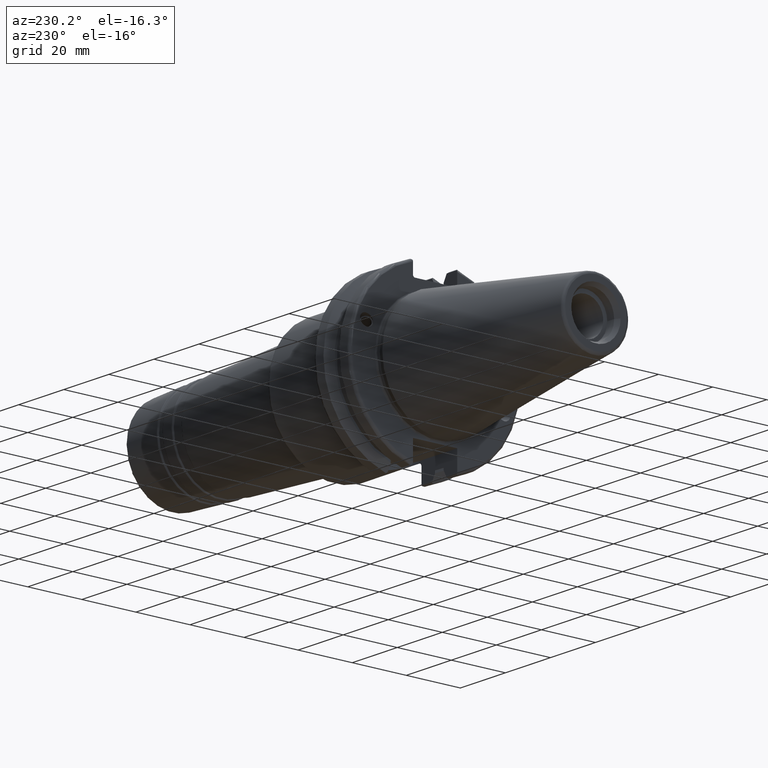
[diagram: clean part render]
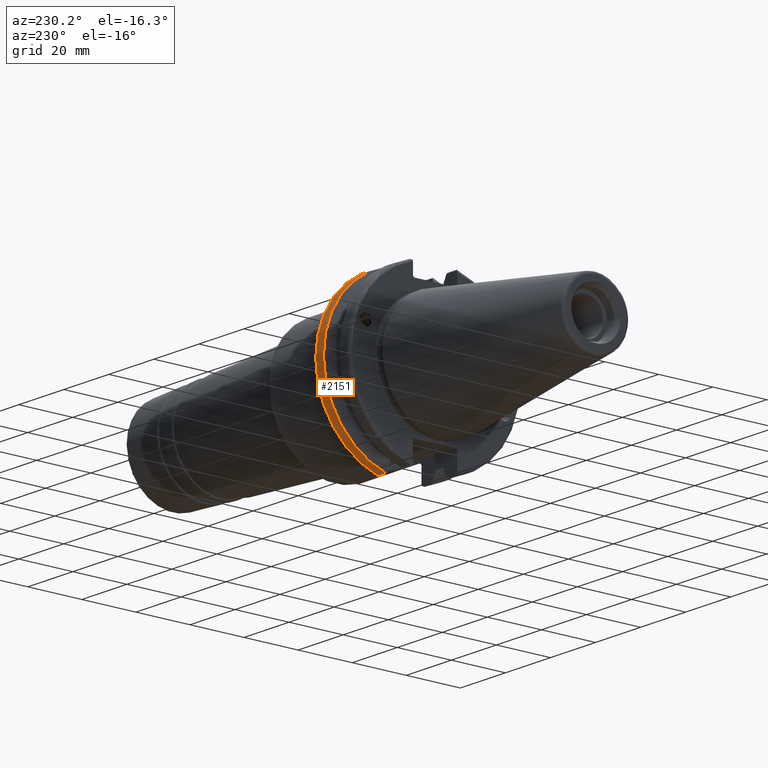
[diagram: same view with one face highlighted and labeled with its STEP entity id]
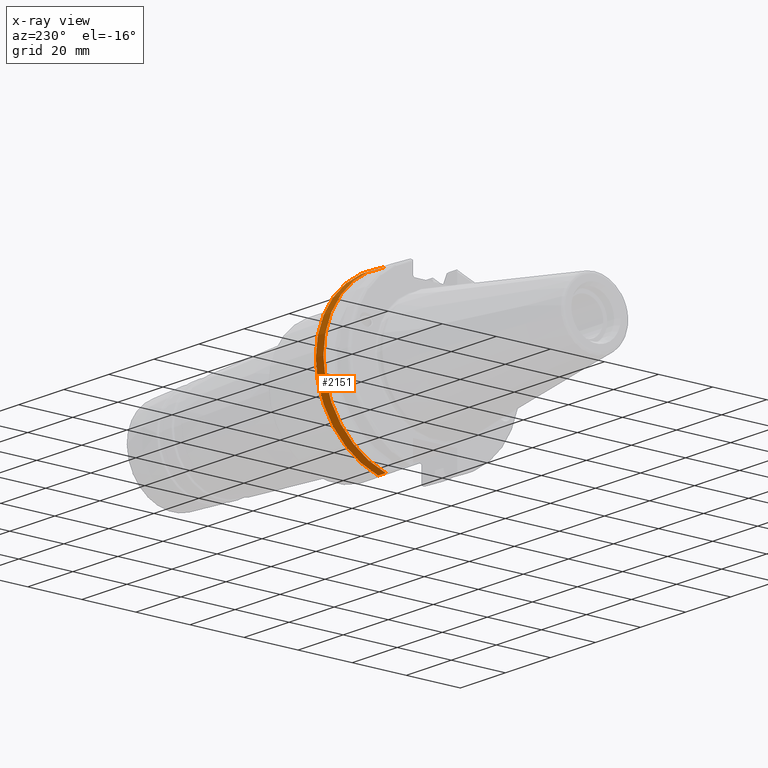
[diagram: x-ray of the same camera — body ghosted, the highlighted face saturated]
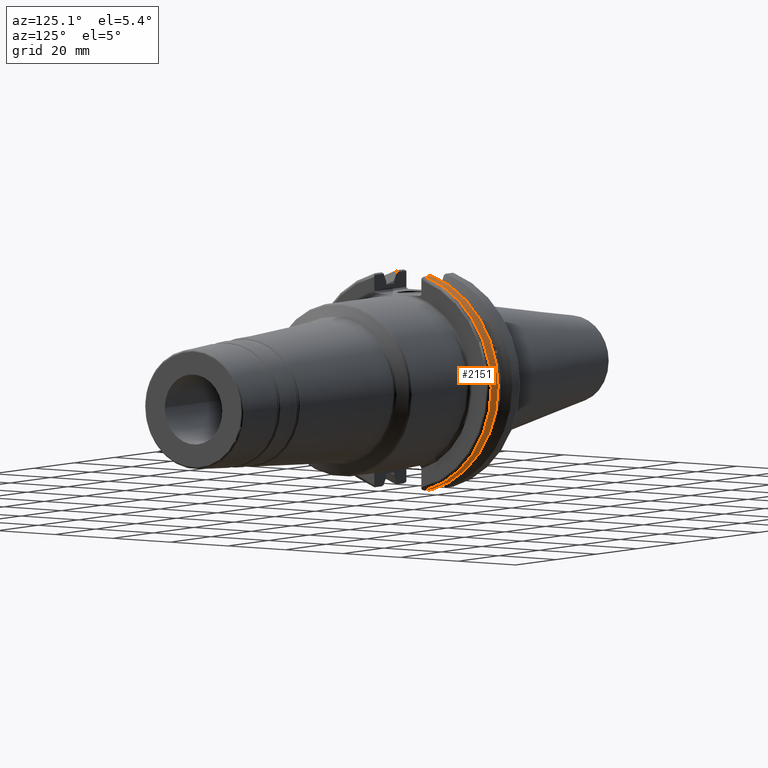
[diagram: same view with one face highlighted and labeled with its STEP entity id]
A machine part, auxiliary view. The second image highlights one B-rep face of the part: STEP entity #2151.
The next image is the same camera in x-ray: the body ghosted, the highlighted face saturated — about 0% of this face is hidden behind the body in this view.
A second angle (auxiliary view) of the same face is appended — the face is thin or edge-on in the first view.
In plain terms, the highlighted cylindrical surface (partial cylindrical patch) has radius 31.75 mm, axis along (1, 0, 0).
Its self-contained STEP definition (entity closure, byte-faithful):
#262=FACE_OUTER_BOUND('',#381,.T.);
#381=EDGE_LOOP('',(#1941,#1942,#1943,#1944));
#467=LINE('',#3969,#566);
#493=LINE('',#4165,#592);
#566=VECTOR('',#3012,10.);
#592=VECTOR('',#3108,10.);
#742=CIRCLE('',#2416,31.75);
#757=CIRCLE('',#2454,31.75);
#967=VERTEX_POINT('',#3943);
#968=VERTEX_POINT('',#3952);
#970=VERTEX_POINT('',#3965);
#1003=VERTEX_POINT('',#4164);
#1268=EDGE_CURVE('',#967,#968,#742,.T.);
#1272=EDGE_CURVE('',#970,#967,#467,.T.);
#1330=EDGE_CURVE('',#968,#1003,#493,.T.);
#1332=EDGE_CURVE('',#970,#1003,#757,.T.);
#1941=ORIENTED_EDGE('',*,*,#1268,.F.);
#1942=ORIENTED_EDGE('',*,*,#1272,.F.);
#1943=ORIENTED_EDGE('',*,*,#1332,.T.);
#1944=ORIENTED_EDGE('',*,*,#1330,.F.);
#2057=CYLINDRICAL_SURFACE('',#2453,31.75);
#2151=ADVANCED_FACE('',(#262),#2057,.T.);
#2416=AXIS2_PLACEMENT_3D('',#3953,#3007,#3008);
#2453=AXIS2_PLACEMENT_3D('',#4169,#3109,#3110);
#2454=AXIS2_PLACEMENT_3D('',#4170,#3111,#3112);
#3007=DIRECTION('center_axis',(1.,0.,0.));
#3008=DIRECTION('ref_axis',(0.,1.,-6.12323399573677E-17));
#3012=DIRECTION('',(1.,0.,0.));
#3108=DIRECTION('',(-1.,0.,0.));
#3109=DIRECTION('center_axis',(1.,0.,0.));
#3110=DIRECTION('ref_axis',(0.,1.,0.));
#3111=DIRECTION('center_axis',(1.,0.,0.));
#3112=DIRECTION('ref_axis',(0.,0.,-1.));
#3943=CARTESIAN_POINT('',(18.05,8.67204822802685,-30.5427254764662));
#3952=CARTESIAN_POINT('',(18.05,8.67204822802685,30.5427254764662));
#3953=CARTESIAN_POINT('Origin',(18.05,0.,0.));
#3965=CARTESIAN_POINT('',(14.6602667690756,8.67204822802685,-30.5427254764662));
#3969=CARTESIAN_POINT('',(16.8551333845378,8.67204822802685,-30.5427254764662));
#4164=CARTESIAN_POINT('',(14.6602667690756,8.67204822802685,30.5427254764662));
#4165=CARTESIAN_POINT('',(16.8551333845378,8.67204822802685,30.5427254764662));
#4169=CARTESIAN_POINT('Origin',(16.8551333845378,0.,0.));
#4170=CARTESIAN_POINT('Origin',(14.6602667690756,0.,0.));